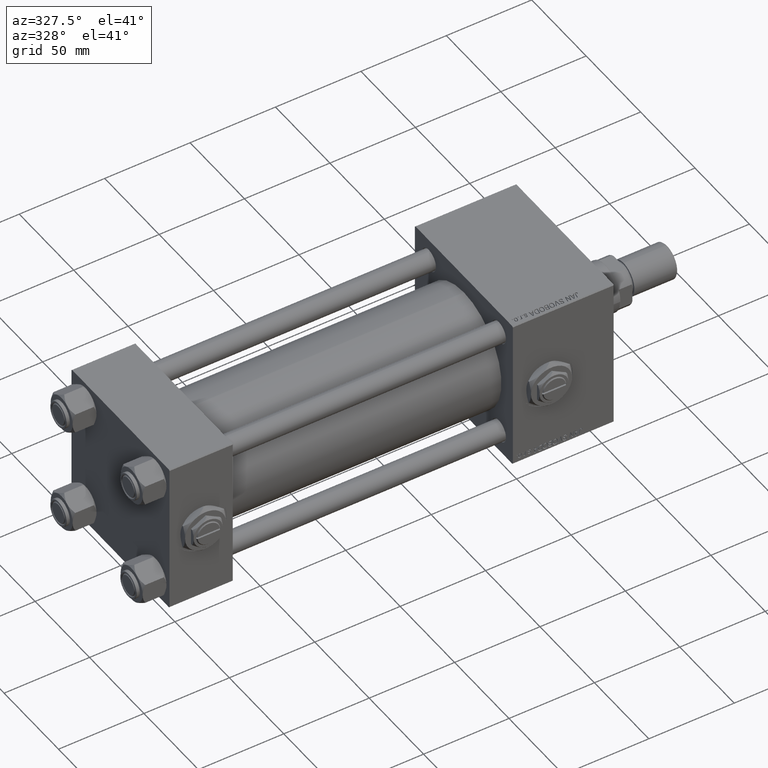
[diagram: clean part render]
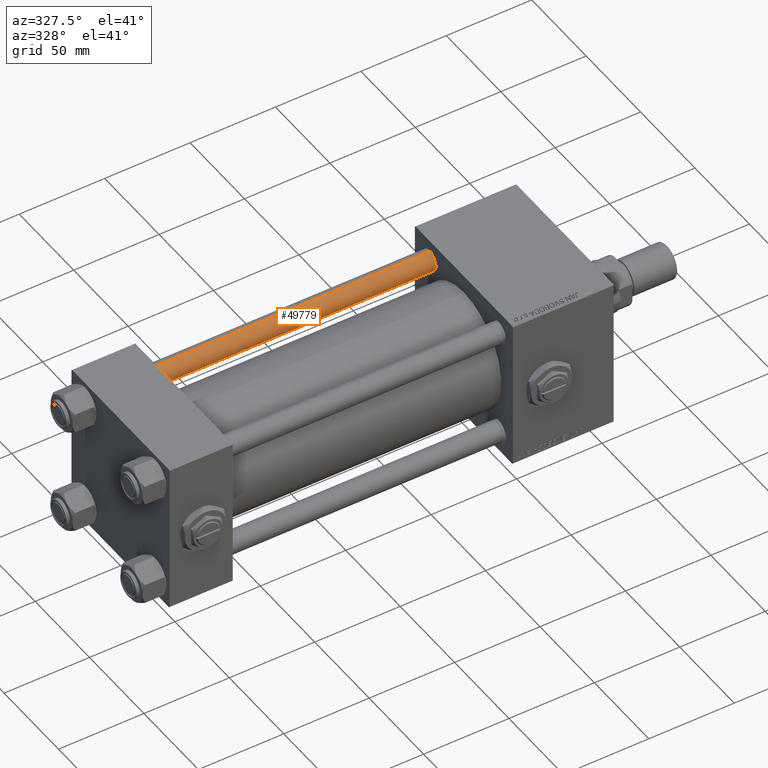
[diagram: same view with one face highlighted and labeled with its STEP entity id]
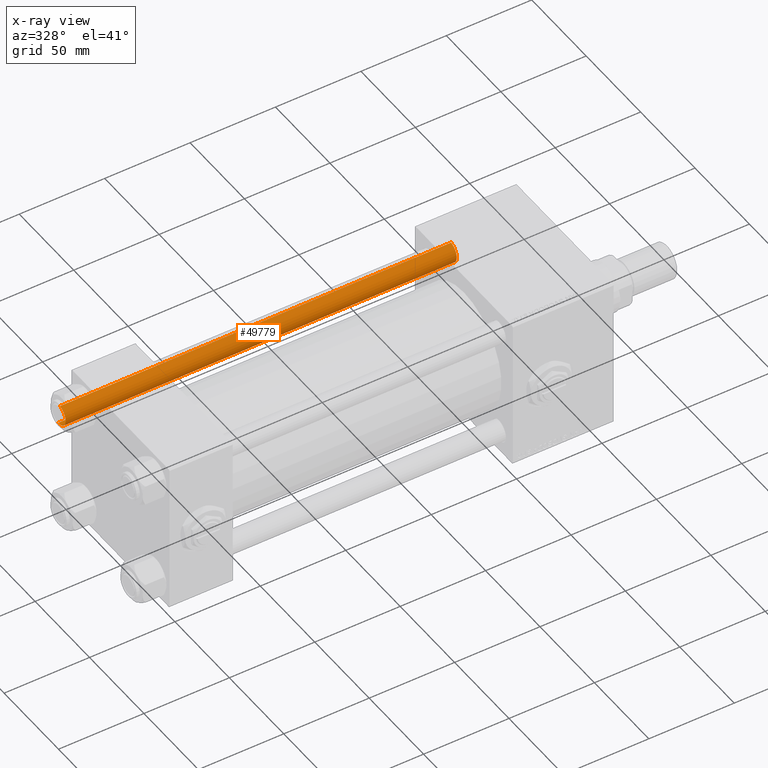
[diagram: x-ray of the same camera — body ghosted, the highlighted face saturated]
A machine part, auxiliary view. The second image highlights one B-rep face of the part: STEP entity #49779.
The next image is the same camera in x-ray: the body ghosted, the highlighted face saturated — about 0% of this face is hidden behind the body in this view.
In plain terms, the highlighted cylindrical surface (edge-blend (fillet) strip) has radius 6 mm, axis along (-1, 0, 0).
Its self-contained STEP definition (entity closure, byte-faithful):
#656 = ORIENTED_EDGE ( 'NONE', *, *, #27748, .F. ) ;
#2241 = CARTESIAN_POINT ( 'NONE',  ( -6.000000000000000888, 0.000000000000000000, 229.5000000000000284 ) ) ;
#3045 = DIRECTION ( 'NONE',  ( 1.000000000000000000, 0.000000000000000000, 0.000000000000000000 ) ) ;
#5498 = CARTESIAN_POINT ( 'NONE',  ( 0.000000000000000000, 0.000000000000000000, 229.5000000000000284 ) ) ;
#8748 = ORIENTED_EDGE ( 'NONE', *, *, #43681, .T. ) ;
#11272 = AXIS2_PLACEMENT_3D ( 'NONE', #13909, #41730, #17133 ) ;
#12285 = DIRECTION ( 'NONE',  ( -0.000000000000000000, -0.000000000000000000, 1.000000000000000000 ) ) ;
#13909 = CARTESIAN_POINT ( 'NONE',  ( 0.000000000000000000, 0.000000000000000000, 230.0000000000000000 ) ) ;
#14510 = EDGE_CURVE ( 'NONE', #26635, #19800, #21214, .T. ) ;
#17133 = DIRECTION ( 'NONE',  ( -1.000000000000000000, 0.000000000000000000, 0.000000000000000000 ) ) ;
#17213 = VERTEX_POINT ( 'NONE', #21640 ) ;
#19154 = DIRECTION ( 'NONE',  ( -0.000000000000000000, -0.000000000000000000, -1.000000000000000000 ) ) ;
#19800 = VERTEX_POINT ( 'NONE', #2241 ) ;
#21214 = CIRCLE ( 'NONE', #47676, 6.000000000000000888 ) ;
#21640 = CARTESIAN_POINT ( 'NONE',  ( 6.000000000000000888, 7.347880794884120722E-16, 0.4999999999999726885 ) ) ;
#23745 = ORIENTED_EDGE ( 'NONE', *, *, #14510, .T. ) ;
#23807 = EDGE_LOOP ( 'NONE', ( #656, #23745, #8748, #33068 ) ) ;
#24157 = CARTESIAN_POINT ( 'NONE',  ( 6.000000000000000888, 7.347880794884120722E-16, 230.0000000000000000 ) ) ;
#24561 = CIRCLE ( 'NONE', #33123, 6.000000000000000888 ) ;
#25500 = CARTESIAN_POINT ( 'NONE',  ( -6.000000000000000888, 0.000000000000000000, 0.4999999999999726885 ) ) ;
#26635 = VERTEX_POINT ( 'NONE', #27901 ) ;
#27718 = LINE ( 'NONE', #44559, #46066 ) ;
#27748 = EDGE_CURVE ( 'NONE', #26635, #17213, #40732, .T. ) ;
#27901 = CARTESIAN_POINT ( 'NONE',  ( 6.000000000000000888, 7.347880794884120722E-16, 229.5000000000000284 ) ) ;
#28859 = CARTESIAN_POINT ( 'NONE',  ( 0.000000000000000000, 0.000000000000000000, 0.4999999999999726885 ) ) ;
#29837 = DIRECTION ( 'NONE',  ( 0.000000000000000000, 0.000000000000000000, -1.000000000000000000 ) ) ;
#33068 = ORIENTED_EDGE ( 'NONE', *, *, #39169, .T. ) ;
#33123 = AXIS2_PLACEMENT_3D ( 'NONE', #28859, #12285, #45177 ) ;
#33953 = VERTEX_POINT ( 'NONE', #25500 ) ;
#36398 = FACE_OUTER_BOUND ( 'NONE', #23807, .T. ) ;
#36458 = DIRECTION ( 'NONE',  ( -0.000000000000000000, -0.000000000000000000, -1.000000000000000000 ) ) ;
#39169 = EDGE_CURVE ( 'NONE', #33953, #17213, #24561, .T. ) ;
#40732 = LINE ( 'NONE', #24157, #41178 ) ;
#41178 = VECTOR ( 'NONE', #36458, 1000.000000000000000 ) ;
#41730 = DIRECTION ( 'NONE',  ( -0.000000000000000000, -0.000000000000000000, -1.000000000000000000 ) ) ;
#43681 = EDGE_CURVE ( 'NONE', #19800, #33953, #27718, .T. ) ;
#44559 = CARTESIAN_POINT ( 'NONE',  ( -6.000000000000000888, 0.000000000000000000, 230.0000000000000000 ) ) ;
#45177 = DIRECTION ( 'NONE',  ( 1.000000000000000000, 0.000000000000000000, 0.000000000000000000 ) ) ;
#46066 = VECTOR ( 'NONE', #19154, 1000.000000000000000 ) ;
#47676 = AXIS2_PLACEMENT_3D ( 'NONE', #5498, #29837, #3045 ) ;
#49779 = ADVANCED_FACE ( 'NONE', ( #36398 ), #52728, .T. ) ;
#52728 = CYLINDRICAL_SURFACE ( 'NONE', #11272, 6.000000000000000888 ) ;